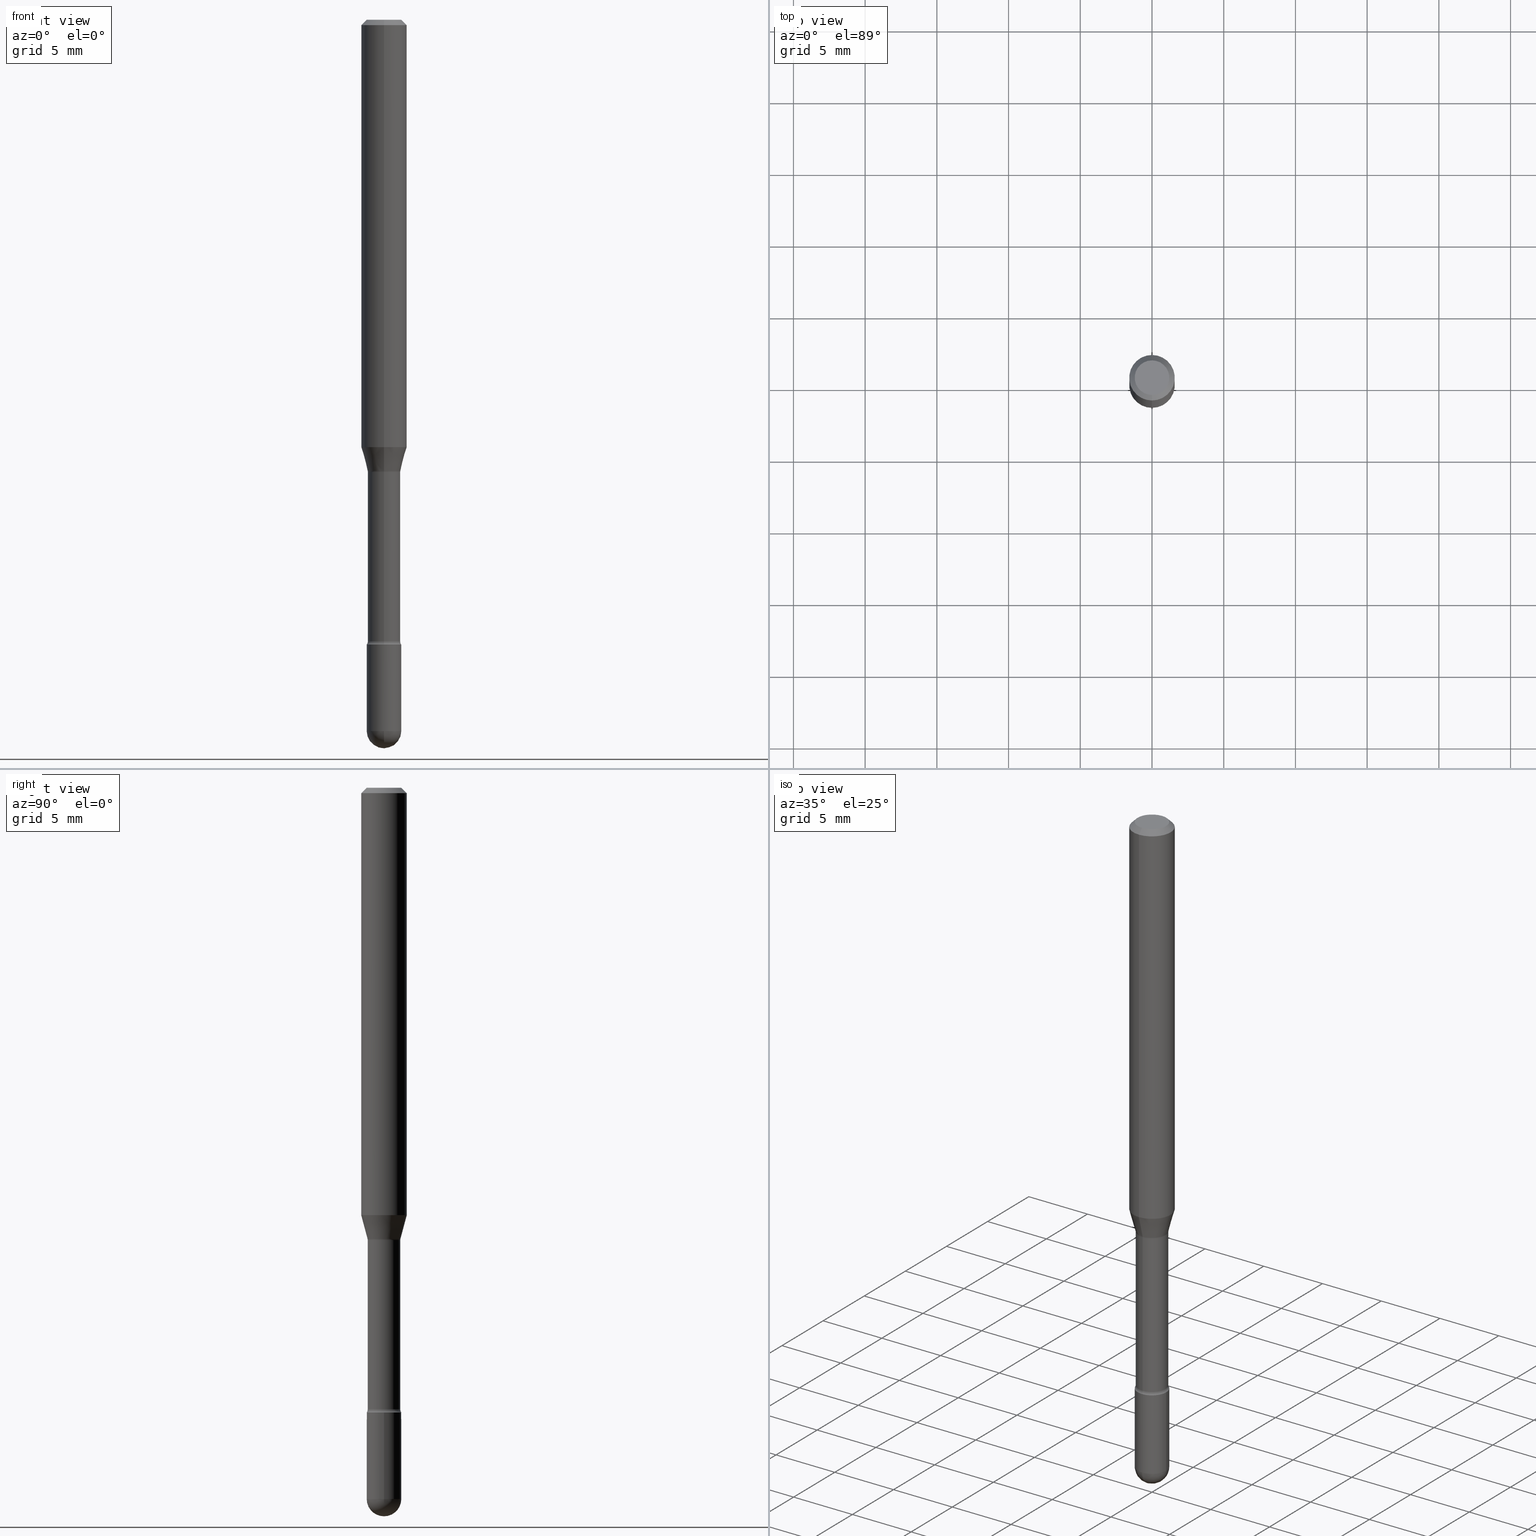
[diagram: canonical four-view strip — front | top / right | iso, engineering-drawing reading convention]
A machine part, canonical four-view strip (front | top / right | iso — engineering-drawing reading convention). The complete STEP part file that produces these views, byte-faithful:
ISO-10303-21;
HEADER;
FILE_DESCRIPTION (( 'STEP AP203' ),
    '1' );
FILE_NAME ('01605.STEP',
    '2024-04-09T20:08:48',
    ( '' ),
    ( '' ),
    'SwSTEP 2.0',
    'SolidWorks 2023',
    '' );
FILE_SCHEMA (( 'CONFIG_CONTROL_DESIGN' ));
ENDSEC;

DATA;
#1 = ADVANCED_FACE ( 'NONE', ( #424 ), #275, .T. ) ;
#2 = ORIENTED_EDGE ( 'NONE', *, *, #120, .F. ) ;
#3 = CARTESIAN_POINT ( 'NONE',  ( 4.172467563059193299E-29, -5.957177861563210606E-15, -1.706203551853162859 ) ) ;
#4 = AXIS2_PLACEMENT_3D ( 'NONE', #530, #142, #413 ) ;
#5 = CONICAL_SURFACE ( 'NONE', #564, 0.04516111260566398750, 0.2617993877991501850 ) ;
#6 = VERTEX_POINT ( 'NONE', #269 ) ;
#7 = FACE_OUTER_BOUND ( 'NONE', #467, .T. ) ;
#8 = DIRECTION ( 'NONE',  ( -6.982962677686266711E-15, -1.000000000000000000, 5.751258934030028949E-15 ) ) ;
#9 = CARTESIAN_POINT ( 'NONE',  ( 4.238387418809418286E-16, 0.05964999999999409663, -1.706203551853163081 ) ) ;
#10 = LENGTH_MEASURE_WITH_UNIT ( LENGTH_MEASURE( 0.02539999999999999897 ), #50 );
#11 = EDGE_CURVE ( 'NONE', #59, #175, #224, .T. ) ;
#12 = CARTESIAN_POINT ( 'NONE',  ( 3.172573315169266568E-16, 0.04464999999999567232, -1.241974787463811181 ) ) ;
#13 = AXIS2_PLACEMENT_3D ( 'NONE', #498, #62, #312 ) ;
#14 = ORIENTED_EDGE ( 'NONE', *, *, #401, .F. ) ;
#15 = CARTESIAN_POINT ( 'NONE',  ( 4.193963082302686338E-29, -5.987913294898629900E-15, -1.715000000000000080 ) ) ;
#16 = FACE_OUTER_BOUND ( 'NONE', #122, .T. ) ;
#17 = CARTESIAN_POINT ( 'NONE',  ( 2.023485354592907983E-45, -2.889149690141823315E-31, -8.274640061838199521E-17 ) ) ;
#18 = ORIENTED_EDGE ( 'NONE', *, *, #335, .T. ) ;
#19 = CARTESIAN_POINT ( 'NONE',  ( 4.774777844076478914E-29, -6.817117314091241226E-15, -1.952499999999999902 ) ) ;
#20 = CARTESIAN_POINT ( 'NONE',  ( 2.023485354592907983E-45, -2.889149690141823315E-31, -8.274640061838199521E-17 ) ) ;
#21 = ORIENTED_EDGE ( 'NONE', *, *, #231, .T. ) ;
#22 = CARTESIAN_POINT ( 'NONE',  ( -0.04750000000000000749, -6.064996105617570464E-15, -1.952499999999999902 ) ) ;
#23 = CARTESIAN_POINT ( 'NONE',  ( -1.169113584055446105E-44, 1.669184350826100908E-30, 4.780733988912460139E-16 ) ) ;
#24 = VERTEX_POINT ( 'NONE', #539 ) ;
#25 = DIRECTION ( 'NONE',  ( 0.000000000000000000, 0.000000000000000000, 1.000000000000000000 ) ) ;
#26 = TOROIDAL_SURFACE ( 'NONE', #205, 0.05965000000000000163, 0.01500000000000001853 ) ;
#27 = LOCAL_TIME ( 16, 8, 48.00000000000000000, #82 ) ;
#28 = CARTESIAN_POINT ( 'NONE',  ( 4.892968632307074311E-29, -6.980054141538316174E-15, -2.000000000000000000 ) ) ;
#29 = ORIENTED_EDGE ( 'NONE', *, *, #504, .T. ) ;
#30 = ORIENTED_EDGE ( 'NONE', *, *, #258, .F. ) ;
#31 = SHAPE_DEFINITION_REPRESENTATION ( #201, #141 ) ;
#32 = EDGE_CURVE ( 'NONE', #439, #59, #381, .T. ) ;
#33 = CC_DESIGN_PERSON_AND_ORGANIZATION_ASSIGNMENT ( #126, #425, ( #360 ) ) ;
#34 = EDGE_LOOP ( 'NONE', ( #276, #540 ) ) ;
#35 = UNCERTAINTY_MEASURE_WITH_UNIT (LENGTH_MEASURE( 1.000000000000000082E-05 ), #402, 'distance_accuracy_value', 'NONE');
#36 =( GEOMETRIC_REPRESENTATION_CONTEXT ( 3 ) GLOBAL_UNCERTAINTY_ASSIGNED_CONTEXT ( ( #35 ) ) GLOBAL_UNIT_ASSIGNED_CONTEXT ( ( #402, #270, #537 ) ) REPRESENTATION_CONTEXT ( 'NONE', 'WORKASPACE' ) );
#37 = PERSON_AND_ORGANIZATION ( #216, #253 ) ;
#38 = CARTESIAN_POINT ( 'NONE',  ( 3.668189284812864689E-31, -5.237241948890958867E-17, -0.01500000000000008271 ) ) ;
#39 = COORDINATED_UNIVERSAL_TIME_OFFSET ( 5, 0, .BEHIND. ) ;
#40 = CC_DESIGN_PERSON_AND_ORGANIZATION_ASSIGNMENT ( #255, #207, ( #155 ) ) ;
#41 = DIRECTION ( 'NONE',  ( -6.982962677686265922E-15, -1.000000000000000000, 6.118360568117042054E-15 ) ) ;
#42 = CARTESIAN_POINT ( 'NONE',  ( -1.169113584055446105E-44, 1.669184350826100908E-30, 4.780733988912460139E-16 ) ) ;
#43 = CONICAL_SURFACE ( 'NONE', #419, 0.06250000000000000000, 0.7853981633974483900 ) ;
#44 = FACE_OUTER_BOUND ( 'NONE', #406, .T. ) ;
#45 = LINE ( 'NONE', #129, #358 ) ;
#46 = EDGE_CURVE ( 'NONE', #477, #334, #392, .T. ) ;
#47 = CARTESIAN_POINT ( 'NONE',  ( 4.440892098500625669E-16, 0.06250000000000000000, 2.598549843541239912E-16 ) ) ;
#48 = AXIS2_PLACEMENT_3D ( 'NONE', #17, #487, #98 ) ;
#49 = AXIS2_PLACEMENT_3D ( 'NONE', #314, #179, #355 ) ;
#50 =( LENGTH_UNIT ( ) NAMED_UNIT ( * ) SI_UNIT ( $, .METRE. ) );
#51 = CARTESIAN_POINT ( 'NONE',  ( 4.193979002607509757E-29, -5.987890496115994688E-15, -1.715000000000000080 ) ) ;
#52 = EDGE_CURVE ( 'NONE', #337, #477, #469, .T. ) ;
#53 = CYLINDRICAL_SURFACE ( 'NONE', #169, 0.04465000000000003688 ) ;
#54 = ORIENTED_EDGE ( 'NONE', *, *, #11, .F. ) ;
#55 = FACE_OUTER_BOUND ( 'NONE', #146, .T. ) ;
#56 = CARTESIAN_POINT ( 'NONE',  ( 3.037199071588307396E-29, -4.336348304246911430E-15, -1.241974787463810959 ) ) ;
#57 = AXIS2_PLACEMENT_3D ( 'NONE', #3, #521, #486 ) ;
#58 = VECTOR ( 'NONE', #307, 39.37007874015748143 ) ;
#59 = VERTEX_POINT ( 'NONE', #184 ) ;
#60 = EDGE_CURVE ( 'NONE', #439, #236, #378, .T. ) ;
#61 = DIRECTION ( 'NONE',  ( -2.445459523208563077E-29, 3.491494632593953152E-15, 1.000000000000000000 ) ) ;
#62 = DIRECTION ( 'NONE',  ( -2.445459523208563077E-29, 3.491494632593953152E-15, 1.000000000000000000 ) ) ;
#63 = EDGE_LOOP ( 'NONE', ( #206, #134, #471, #18, #549 ) ) ;
#64 = CARTESIAN_POINT ( 'NONE',  ( 0.04750000000000000749, -3.316907271900977082E-16, 2.316183968503069432E-30 ) ) ;
#65 = CARTESIAN_POINT ( 'NONE',  ( -3.316907271900557507E-16, -0.04750000000000598882, -1.714999999999999858 ) ) ;
#66 = ORIENTED_EDGE ( 'NONE', *, *, #263, .F. ) ;
#67 = DIRECTION ( 'NONE',  ( 1.000000000000000000, -6.982962677686266711E-15, 4.876176775795934672E-29 ) ) ;
#68 = CIRCLE ( 'NONE', #4, 0.01500000000000001853 ) ;
#69 = ORIENTED_EDGE ( 'NONE', *, *, #46, .F. ) ;
#70 = APPROVAL_ROLE ( '' ) ;
#71 = VERTEX_POINT ( 'NONE', #145 ) ;
#72 = APPROVAL_DATE_TIME ( #507, #396 ) ;
#73 = EDGE_CURVE ( 'NONE', #236, #175, #68, .T. ) ;
#74 = ORIENTED_EDGE ( 'NONE', *, *, #485, .T. ) ;
#75 = APPROVAL_DATE_TIME ( #294, #220 ) ;
#76 = EDGE_LOOP ( 'NONE', ( #2, #66, #74, #156 ) ) ;
#77 = COORDINATED_UNIVERSAL_TIME_OFFSET ( 5, 0, .BEHIND. ) ;
#78 = AXIS2_PLACEMENT_3D ( 'NONE', #118, #168, #491 ) ;
#79 = DIRECTION ( 'NONE',  ( -2.445468806185136597E-29, 3.491481338843145583E-15, 1.000000000000000000 ) ) ;
#80 = LOCAL_TIME ( 16, 8, 48.00000000000000000, #77 ) ;
#81 = APPROVAL ( #388, 'UNSPECIFIED' ) ;
#82 = COORDINATED_UNIVERSAL_TIME_OFFSET ( 5, 0, .BEHIND. ) ;
#83 = DIRECTION ( 'NONE',  ( -6.982962677686265922E-15, -1.000000000000000000, 3.491494632593953152E-15 ) ) ;
#84 = ORIENTED_EDGE ( 'NONE', *, *, #520, .F. ) ;
#85 = DIRECTION ( 'NONE',  ( -2.445459523208563077E-29, 3.491494632593953152E-15, 1.000000000000000000 ) ) ;
#86 = DIRECTION ( 'NONE',  ( -6.982962677686266711E-15, -1.000000000000000000, 6.049115790211160649E-15 ) ) ;
#87 = VECTOR ( 'NONE', #85, 39.37007874015748143 ) ;
#88 = AXIS2_PLACEMENT_3D ( 'NONE', #418, #25, #376 ) ;
#89 = DIRECTION ( 'NONE',  ( -2.445459523208563077E-29, 3.491494632593953152E-15, 1.000000000000000000 ) ) ;
#90 = EDGE_CURVE ( 'NONE', #327, #113, #267, .T. ) ;
#91 = VERTEX_POINT ( 'NONE', #65 ) ;
#92 = CARTESIAN_POINT ( 'NONE',  ( 3.027705099108801409E-29, -4.322793324645083169E-15, -1.238092501787273036 ) ) ;
#93 = ORIENTED_EDGE ( 'NONE', *, *, #104, .F. ) ;
#94 = DIRECTION ( 'NONE',  ( 2.445459523208563077E-29, -3.491494632593953152E-15, -1.000000000000000000 ) ) ;
#95 = AXIS2_PLACEMENT_3D ( 'NONE', #324, #548, #192 ) ;
#96 = DIRECTION ( 'NONE',  ( 1.000000000000000000, -7.105427357601001070E-15, 4.926315671343576413E-29 ) ) ;
#97 = DIRECTION ( 'NONE',  ( -2.445459523208563077E-29, 3.491494632593953152E-15, 1.000000000000000000 ) ) ;
#98 = DIRECTION ( 'NONE',  ( -6.982962677686266711E-15, -1.000000000000000000, 3.491494632593952758E-15 ) ) ;
#99 = ORIENTED_EDGE ( 'NONE', *, *, #429, .T. ) ;
#100 = CARTESIAN_POINT ( 'NONE',  ( -1.169113584055446105E-44, 1.669184350826100908E-30, 4.780733988912460139E-16 ) ) ;
#101 = LINE ( 'NONE', #391, #213 ) ;
#102 = CARTESIAN_POINT ( 'NONE',  ( -3.773273898774340269E-16, -0.04749999999999999362, 8.309959442983075930E-17 ) ) ;
#103 = ORIENTED_EDGE ( 'NONE', *, *, #60, .F. ) ;
#104 = EDGE_CURVE ( 'NONE', #175, #59, #544, .T. ) ;
#105 = CARTESIAN_POINT ( 'NONE',  ( 3.668189284812864689E-31, -5.237241948890958867E-17, -0.01500000000000008271 ) ) ;
#106 = CYLINDRICAL_SURFACE ( 'NONE', #398, 0.04750000000000000749 ) ;
#107 = CONICAL_SURFACE ( 'NONE', #428, 0.04516111260566398750, 0.2617993877991501850 ) ;
#108 = CC_DESIGN_APPROVAL ( #396, ( #360 ) ) ;
#109 = ORIENTED_EDGE ( 'NONE', *, *, #546, .T. ) ;
#110 = FACE_OUTER_BOUND ( 'NONE', #506, .T. ) ;
#111 = DIRECTION ( 'NONE',  ( -6.982962677686265922E-15, -1.000000000000000000, 6.118360568117049942E-15 ) ) ;
#112 = CLOSED_SHELL ( 'NONE', ( #215, #165, #382, #320, #556, #423, #453, #470, #356, #496, #535, #437, #442, #313 ) ) ;
#113 = VERTEX_POINT ( 'NONE', #102 ) ;
#114 = DIRECTION ( 'NONE',  ( -2.445459523208563077E-29, 3.491494632593953152E-15, 1.000000000000000000 ) ) ;
#115 = EDGE_LOOP ( 'NONE', ( #193, #414, #264, #257 ) ) ;
#116 = PERSON_AND_ORGANIZATION_ROLE ( 'creator' ) ;
#117 = DIRECTION ( 'NONE',  ( -2.445459523208563077E-29, 3.491494632593953152E-15, 1.000000000000000000 ) ) ;
#118 = CARTESIAN_POINT ( 'NONE',  ( 4.774777844076478914E-29, -6.817117314091241226E-15, -1.952499999999999902 ) ) ;
#119 = ORIENTED_EDGE ( 'NONE', *, *, #120, .T. ) ;
#120 = EDGE_CURVE ( 'NONE', #293, #330, #371, .T. ) ;
#121 = SECURITY_CLASSIFICATION_LEVEL ( 'unclassified' ) ;
#122 = EDGE_LOOP ( 'NONE', ( #30, #285, #306, #455 ) ) ;
#123 = VERTEX_POINT ( 'NONE', #361 ) ;
#124 = DATE_TIME_ROLE ( 'classification_date' ) ;
#125 = CC_DESIGN_PERSON_AND_ORGANIZATION_ASSIGNMENT ( #468, #513, ( #526 ) ) ;
#126 = PERSON_AND_ORGANIZATION ( #216, #253 ) ;
#127 = AXIS2_PLACEMENT_3D ( 'NONE', #9, #96, #238 ) ;
#128 = DIRECTION ( 'NONE',  ( -6.982962677686265922E-15, -1.000000000000000000, 3.483106191921935554E-15 ) ) ;
#129 = CARTESIAN_POINT ( 'NONE',  ( -4.287811248607203282E-16, -0.06250000000000005551, -0.01499999999999986587 ) ) ;
#130 = DIRECTION ( 'NONE',  ( -6.982962677686265922E-15, -1.000000000000000000, 3.491494632593953152E-15 ) ) ;
#131 = ADVANCED_FACE ( 'NONE', ( #225 ), #357, .T. ) ;
#132 = PLANE ( 'NONE',  #49 ) ;
#133 = VECTOR ( 'NONE', #61, 39.37007874015748143 ) ;
#134 = ORIENTED_EDGE ( 'NONE', *, *, #52, .T. ) ;
#135 = DIRECTION ( 'NONE',  ( -6.982962677686265922E-15, -1.000000000000000000, 3.491494632593953547E-15 ) ) ;
#136 = CARTESIAN_POINT ( 'NONE',  ( 3.208890050080145858E-16, 0.04516111260565967150, -1.238092501787273259 ) ) ;
#137 = EDGE_CURVE ( 'NONE', #439, #239, #318, .T. ) ;
#138 = DIRECTION ( 'NONE',  ( -2.445468806185136597E-29, 3.491481338843145583E-15, 1.000000000000000000 ) ) ;
#139 = AXIS2_PLACEMENT_3D ( 'NONE', #221, #522, #212 ) ;
#140 = CARTESIAN_POINT ( 'NONE',  ( -3.153583638081081446E-16, -0.04516111260566831043, -1.238092501787272814 ) ) ;
#141 = ADVANCED_BREP_SHAPE_REPRESENTATION ( '01605', ( #342, #525, #88 ), #36 ) ;
#142 = DIRECTION ( 'NONE',  ( 1.000000000000000000, -7.105427357601001070E-15, 4.926315671343576413E-29 ) ) ;
#143 = ORIENTED_EDGE ( 'NONE', *, *, #90, .T. ) ;
#144 = DIRECTION ( 'NONE',  ( -6.982962677686266711E-15, -1.000000000000000000, 6.049115790211160649E-15 ) ) ;
#145 = CARTESIAN_POINT ( 'NONE',  ( 4.440892098500914096E-16, 0.06249999999999995143, -0.01500000000000030129 ) ) ;
#146 = EDGE_LOOP ( 'NONE', ( #551, #84 ) ) ;
#147 = EDGE_CURVE ( 'NONE', #91, #330, #481, .T. ) ;
#148 = CARTESIAN_POINT ( 'NONE',  ( 3.840629472727447874E-16, 0.04749999999999999362, -2.485923956665947374E-16 ) ) ;
#149 = DIRECTION ( 'NONE',  ( -2.445459523208563077E-29, 3.491494632593953152E-15, 1.000000000000000000 ) ) ;
#150 = AXIS2_PLACEMENT_3D ( 'NONE', #412, #463, #83 ) ;
#151 = CIRCLE ( 'NONE', #304, 0.04750000000000000749 ) ;
#152 = EDGE_LOOP ( 'NONE', ( #247, #499, #495, #552 ) ) ;
#153 = DIRECTION ( 'NONE',  ( -1.000000000000000000, 6.982962677686265922E-15, -4.883557194083112340E-29 ) ) ;
#154 = DIRECTION ( 'NONE',  ( -1.000000000000000000, 6.982962677686265922E-15, -4.883557194083112340E-29 ) ) ;
#155 = PRODUCT ( '01605', '01605', '', ( #427 ) ) ;
#156 = ORIENTED_EDGE ( 'NONE', *, *, #147, .T. ) ;
#157 = PERSON_AND_ORGANIZATION ( #216, #253 ) ;
#158 = ADVANCED_FACE ( 'NONE', ( #272 ), #106, .T. ) ;
#159 = DIRECTION ( 'NONE',  ( -6.982962677686265922E-15, -1.000000000000000000, 3.483106191921935554E-15 ) ) ;
#160 = EDGE_LOOP ( 'NONE', ( #162, #512, #451, #290 ) ) ;
#161 = AXIS2_PLACEMENT_3D ( 'NONE', #480, #265, #484 ) ;
#162 = ORIENTED_EDGE ( 'NONE', *, *, #350, .F. ) ;
#163 = APPROVAL_STATUS ( 'not_yet_approved' ) ;
#164 = ORIENTED_EDGE ( 'NONE', *, *, #199, .F. ) ;
#165 = ADVANCED_FACE ( 'NONE', ( #534 ), #53, .T. ) ;
#166 = DESIGN_CONTEXT ( 'detailed design', #441, 'design' ) ;
#167 = APPROVAL_DATE_TIME ( #252, #81 ) ;
#168 = DIRECTION ( 'NONE',  ( -1.000000000000000000, 7.105427357601001070E-15, -4.926315508542082329E-29 ) ) ;
#169 = AXIS2_PLACEMENT_3D ( 'NONE', #23, #235, #227 ) ;
#170 = CONICAL_SURFACE ( 'NONE', #489, 0.06250000000000000000, 0.7853981633974483900 ) ;
#171 = FACE_OUTER_BOUND ( 'NONE', #160, .T. ) ;
#172 = CARTESIAN_POINT ( 'NONE',  ( -3.153583638081081446E-16, -0.04516111260566831043, -1.238092501787272814 ) ) ;
#173 = EDGE_CURVE ( 'NONE', #113, #327, #230, .T. ) ;
#174 = CARTESIAN_POINT ( 'NONE',  ( 3.172573315168849457E-16, 0.04465000000000003688, 3.221781635459259007E-16 ) ) ;
#175 = VERTEX_POINT ( 'NONE', #12 ) ;
#176 = CARTESIAN_POINT ( 'NONE',  ( -3.117892835586504621E-16, -0.04465000000000601821, -1.706203551853162415 ) ) ;
#177 = EDGE_CURVE ( 'NONE', #203, #477, #288, .T. ) ;
#178 = FACE_OUTER_BOUND ( 'NONE', #287, .T. ) ;
#179 = DIRECTION ( 'NONE',  ( 2.445459523208562796E-29, -3.491494632593953152E-15, -1.000000000000000000 ) ) ;
#180 = DIRECTION ( 'NONE',  ( 1.000000000000000000, -6.982962677686265922E-15, 4.876176775795935793E-29 ) ) ;
#181 = APPLICATION_PROTOCOL_DEFINITION ( 'international standard', 'config_control_design', 1994, #208 ) ;
#182 = CARTESIAN_POINT ( 'NONE',  ( 3.316907271901395178E-16, 0.04749999999999401229, -1.715000000000000524 ) ) ;
#183 = CIRCLE ( 'NONE', #139, 0.04749999999999999362 ) ;
#184 = CARTESIAN_POINT ( 'NONE',  ( -3.117892835586614568E-16, -0.04465000000000434593, -1.241974787463810737 ) ) ;
#185 = ORIENTED_EDGE ( 'NONE', *, *, #292, .F. ) ;
#186 = FACE_OUTER_BOUND ( 'NONE', #464, .T. ) ;
#187 = SPHERICAL_SURFACE ( 'NONE', #473, 0.04749999999999998668 ) ;
#188 = CARTESIAN_POINT ( 'NONE',  ( 3.037199071588307396E-29, -4.336348304246911430E-15, -1.241974787463810959 ) ) ;
#189 = EDGE_CURVE ( 'NONE', #411, #59, #101, .T. ) ;
#190 = ORIENTED_EDGE ( 'NONE', *, *, #350, .T. ) ;
#191 = CARTESIAN_POINT ( 'NONE',  ( 3.037210600811164574E-29, -4.336331793743577757E-15, -1.241974787463810959 ) ) ;
#192 = DIRECTION ( 'NONE',  ( -6.982962677686266711E-15, -1.000000000000000000, 6.049115790211160649E-15 ) ) ;
#193 = ORIENTED_EDGE ( 'NONE', *, *, #60, .T. ) ;
#194 = CARTESIAN_POINT ( 'NONE',  ( 0.000000000000000000, 0.000000000000000000, 0.000000000000000000 ) ) ;
#195 = CARTESIAN_POINT ( 'NONE',  ( 4.774777844076478914E-29, -6.817117314091241226E-15, -1.952499999999999902 ) ) ;
#196 = AXIS2_PLACEMENT_3D ( 'NONE', #19, #254, #256 ) ;
#197 = APPROVAL_PERSON_ORGANIZATION ( #331, #220, #384 ) ;
#198 = VERTEX_POINT ( 'NONE', #368 ) ;
#199 = EDGE_CURVE ( 'NONE', #198, #337, #332, .T. ) ;
#200 = DIRECTION ( 'NONE',  ( -2.445459523208563077E-29, 3.491494632593953152E-15, 1.000000000000000000 ) ) ;
#201 = PRODUCT_DEFINITION_SHAPE ( 'NONE', 'NONE',  #526 ) ;
#202 = ORIENTED_EDGE ( 'NONE', *, *, #563, .T. ) ;
#203 = VERTEX_POINT ( 'NONE', #28 ) ;
#204 = EDGE_CURVE ( 'NONE', #24, #239, #435, .T. ) ;
#205 = AXIS2_PLACEMENT_3D ( 'NONE', #191, #117, #476 ) ;
#206 = ORIENTED_EDGE ( 'NONE', *, *, #563, .F. ) ;
#207 = PERSON_AND_ORGANIZATION_ROLE ( 'design_owner' ) ;
#208 = APPLICATION_CONTEXT ( 'configuration controlled 3d designs of mechanical parts and assemblies' ) ;
#209 = CC_DESIGN_PERSON_AND_ORGANIZATION_ASSIGNMENT ( #157, #514, ( #518 ) ) ;
#210 = CALENDAR_DATE ( 2024, 9, 4 ) ;
#211 = DIRECTION ( 'NONE',  ( 6.982962677686265922E-15, 1.000000000000000000, -3.483106191921935554E-15 ) ) ;
#212 = DIRECTION ( 'NONE',  ( 1.000000000000000000, -6.982962677686261977E-15, 0.000000000000000000 ) ) ;
#213 = VECTOR ( 'NONE', #298, 39.37007874015748143 ) ;
#214 = CARTESIAN_POINT ( 'NONE',  ( -3.375077994859997675E-16, -0.04750000000000682149, -1.952499999999999680 ) ) ;
#215 = ADVANCED_FACE ( 'NONE', ( #16 ), #462, .F. ) ;
#216 = PERSON ( 'UNSPECIFIED', 'UNSPECIFIED', 'UNSPECIFIED', ('UNSPECIFIED'), ('UNSPECIFIED'), ('UNSPECIFIED') ) ;
#217 = CARTESIAN_POINT ( 'NONE',  ( 3.668189284812864689E-31, -5.237241948890958867E-17, -0.01500000000000008271 ) ) ;
#218 = ORIENTED_EDGE ( 'NONE', *, *, #367, .T. ) ;
#219 = CYLINDRICAL_SURFACE ( 'NONE', #444, 0.04465000000000003688 ) ;
#220 = APPROVAL ( #163, 'UNSPECIFIED' ) ;
#221 = CARTESIAN_POINT ( 'NONE',  ( 4.193979002607509757E-29, -5.987890496115994688E-15, -1.715000000000000080 ) ) ;
#222 = CIRCLE ( 'NONE', #278, 0.04749999999999999362 ) ;
#223 = CC_DESIGN_DATE_AND_TIME_ASSIGNMENT ( #246, #124, ( #360 ) ) ;
#224 = CIRCLE ( 'NONE', #377, 0.04465000000000000913 ) ;
#225 = FACE_OUTER_BOUND ( 'NONE', #34, .T. ) ;
#226 = DIRECTION ( 'NONE',  ( -6.982962677686265922E-15, -1.000000000000000000, 3.491494632593953152E-15 ) ) ;
#227 = DIRECTION ( 'NONE',  ( -6.982962677686265922E-15, -1.000000000000000000, 3.491494632593953547E-15 ) ) ;
#228 = VERTEX_POINT ( 'NONE', #538 ) ;
#229 = CARTESIAN_POINT ( 'NONE',  ( 2.869460370264472986E-29, -4.096860073183477433E-15, -1.173382893084895739 ) ) ;
#230 = CIRCLE ( 'NONE', #250, 0.04749999999999999362 ) ;
#231 = EDGE_CURVE ( 'NONE', #6, #71, #562, .T. ) ;
#232 = CARTESIAN_POINT ( 'NONE',  ( -4.165337237239554180E-16, -0.05965000000000433844, -1.241974787463810737 ) ) ;
#233 = ORIENTED_EDGE ( 'NONE', *, *, #429, .F. ) ;
#234 = DIRECTION ( 'NONE',  ( 2.445459523208563077E-29, -3.491494632593953152E-15, -1.000000000000000000 ) ) ;
#235 = DIRECTION ( 'NONE',  ( -2.445459523208563077E-29, 3.491494632593953152E-15, 1.000000000000000000 ) ) ;
#236 = VERTEX_POINT ( 'NONE', #286 ) ;
#237 = CYLINDRICAL_SURFACE ( 'NONE', #517, 0.04750000000000000749 ) ;
#238 = DIRECTION ( 'NONE',  ( 7.105427357601001859E-15, 1.000000000000000000, 0.000000000000000000 ) ) ;
#239 = VERTEX_POINT ( 'NONE', #326 ) ;
#240 = CIRCLE ( 'NONE', #510, 0.06250000000000000000 ) ;
#241 = FACE_OUTER_BOUND ( 'NONE', #273, .T. ) ;
#242 = VECTOR ( 'NONE', #266, 39.37007874015748143 ) ;
#243 = AXIS2_PLACEMENT_3D ( 'NONE', #182, #493, #226 ) ;
#244 = ORIENTED_EDGE ( 'NONE', *, *, #504, .F. ) ;
#245 = ORIENTED_EDGE ( 'NONE', *, *, #189, .T. ) ;
#246 = DATE_AND_TIME ( #422, #80 ) ;
#247 = ORIENTED_EDGE ( 'NONE', *, *, #479, .F. ) ;
#248 = DATE_TIME_ROLE ( 'creation_date' ) ;
#249 = ADVANCED_FACE ( 'NONE', ( #505 ), #187, .T. ) ;
#250 = AXIS2_PLACEMENT_3D ( 'NONE', #20, #149, #405 ) ;
#251 = ORIENTED_EDGE ( 'NONE', *, *, #199, .T. ) ;
#252 = DATE_AND_TIME ( #557, #268 ) ;
#253 = ORGANIZATION ( 'UNSPECIFIED', 'UNSPECIFIED', '' ) ;
#254 = DIRECTION ( 'NONE',  ( 1.000000000000000000, -6.982962677686265922E-15, 4.883557194083112340E-29 ) ) ;
#255 = PERSON_AND_ORGANIZATION ( #216, #253 ) ;
#256 = DIRECTION ( 'NONE',  ( 6.982962677686265133E-15, 1.000000000000000000, 0.000000000000000000 ) ) ;
#257 = ORIENTED_EDGE ( 'NONE', *, *, #137, .F. ) ;
#258 = EDGE_CURVE ( 'NONE', #236, #439, #553, .T. ) ;
#259 = DIRECTION ( 'NONE',  ( -2.445459523208563077E-29, 3.491494632593953152E-15, 1.000000000000000000 ) ) ;
#260 = VECTOR ( 'NONE', #416, 39.37007874015749564 ) ;
#261 = LINE ( 'NONE', #262, #58 ) ;
#262 = CARTESIAN_POINT ( 'NONE',  ( 4.364351673553919652E-16, 0.06249999999999995143, -0.01500000000000030129 ) ) ;
#263 = EDGE_CURVE ( 'NONE', #411, #293, #303, .T. ) ;
#264 = ORIENTED_EDGE ( 'NONE', *, *, #546, .F. ) ;
#265 = DIRECTION ( 'NONE',  ( -2.445468806185136597E-29, 3.491481338843145583E-15, 1.000000000000000000 ) ) ;
#266 = DIRECTION ( 'NONE',  ( -2.445468806185136877E-29, 3.491481338843145188E-15, 1.000000000000000000 ) ) ;
#267 = CIRCLE ( 'NONE', #48, 0.04749999999999999362 ) ;
#268 = LOCAL_TIME ( 16, 8, 48.00000000000000000, #558 ) ;
#269 = CARTESIAN_POINT ( 'NONE',  ( -4.364351673553912750E-16, -0.06250000000000005551, -0.01499999999999986587 ) ) ;
#270 =( NAMED_UNIT ( * ) PLANE_ANGLE_UNIT ( ) SI_UNIT ( $, .RADIAN. ) );
#271 = DIRECTION ( 'NONE',  ( -6.982962677686265922E-15, -1.000000000000000000, 3.491494632593953152E-15 ) ) ;
#272 = FACE_OUTER_BOUND ( 'NONE', #63, .T. ) ;
#273 = EDGE_LOOP ( 'NONE', ( #251, #202, #483, #511, #29 ) ) ;
#274 = EDGE_CURVE ( 'NONE', #239, #6, #550, .T. ) ;
#275 = SPHERICAL_SURFACE ( 'NONE', #478, 0.04749999999999998668 ) ;
#276 = ORIENTED_EDGE ( 'NONE', *, *, #395, .T. ) ;
#277 = AXIS2_PLACEMENT_3D ( 'NONE', #105, #541, #159 ) ;
#278 = AXIS2_PLACEMENT_3D ( 'NONE', #15, #533, #8 ) ;
#279 = CARTESIAN_POINT ( 'NONE',  ( -4.364351673553916201E-16, -0.06250000000000000000, 6.962918134283680859E-16 ) ) ;
#280 = DIRECTION ( 'NONE',  ( -2.445468806185136597E-29, 3.491481338843145583E-15, 1.000000000000000000 ) ) ;
#281 = ORIENTED_EDGE ( 'NONE', *, *, #367, .F. ) ;
#282 = ADVANCED_FACE ( 'NONE', ( #241 ), #237, .T. ) ;
#283 = CARTESIAN_POINT ( 'NONE',  ( 0.04750000000000000749, -6.734194632293715468E-15, -1.952499999999999902 ) ) ;
#284 = DIRECTION ( 'NONE',  ( -2.438088387897960049E-29, 3.491481338843145188E-15, 1.000000000000000000 ) ) ;
#285 = ORIENTED_EDGE ( 'NONE', *, *, #73, .T. ) ;
#286 = CARTESIAN_POINT ( 'NONE',  ( 3.824891074290529484E-16, 0.04516111260565967150, -1.238092501787273259 ) ) ;
#287 = EDGE_LOOP ( 'NONE', ( #281, #458, #426, #185 ) ) ;
#288 = CIRCLE ( 'NONE', #78, 0.04749999999999998668 ) ;
#289 = VECTOR ( 'NONE', #393, 39.37007874015748143 ) ;
#290 = ORIENTED_EDGE ( 'NONE', *, *, #292, .T. ) ;
#291 = ORIENTED_EDGE ( 'NONE', *, *, #173, .T. ) ;
#292 = EDGE_CURVE ( 'NONE', #71, #6, #240, .T. ) ;
#293 = VERTEX_POINT ( 'NONE', #379 ) ;
#294 = DATE_AND_TIME ( #210, #351 ) ;
#295 = AXIS2_PLACEMENT_3D ( 'NONE', #508, #317, #144 ) ;
#296 = APPROVAL_STATUS ( 'not_yet_approved' ) ;
#297 = AXIS2_PLACEMENT_3D ( 'NONE', #42, #432, #130 ) ;
#298 = DIRECTION ( 'NONE',  ( -2.445459523208563077E-29, 3.491494632593953152E-15, 1.000000000000000000 ) ) ;
#299 = ORIENTED_EDGE ( 'NONE', *, *, #401, .T. ) ;
#300 = EDGE_CURVE ( 'NONE', #203, #198, #531, .T. ) ;
#301 = CARTESIAN_POINT ( 'NONE',  ( 4.172451724411591816E-29, -5.957200543408056357E-15, -1.706203551853162859 ) ) ;
#302 = LINE ( 'NONE', #136, #289 ) ;
#303 = CIRCLE ( 'NONE', #452, 0.04465000000000006464 ) ;
#304 = AXIS2_PLACEMENT_3D ( 'NONE', #529, #138, #449 ) ;
#305 = DIRECTION ( 'NONE',  ( -2.445459523208563077E-29, 3.491494632593953152E-15, 1.000000000000000000 ) ) ;
#306 = ORIENTED_EDGE ( 'NONE', *, *, #104, .T. ) ;
#307 = DIRECTION ( 'NONE',  ( 4.937700262164548042E-15, 0.7071067811865451302, -0.7071067811865499042 ) ) ;
#308 = CC_DESIGN_PERSON_AND_ORGANIZATION_ASSIGNMENT ( #338, #116, ( #518 ) ) ;
#309 = CARTESIAN_POINT ( 'NONE',  ( -4.165337237239444233E-16, -0.05965000000000601765, -1.706203551853162415 ) ) ;
#310 = PLANE ( 'NONE',  #243 ) ;
#311 = LOCAL_TIME ( 16, 8, 48.00000000000000000, #39 ) ;
#312 = DIRECTION ( 'NONE',  ( -6.982962677686266711E-15, -1.000000000000000000, 5.751258934030028949E-15 ) ) ;
#313 = ADVANCED_FACE ( 'NONE', ( #110 ), #26, .F. ) ;
#314 = CARTESIAN_POINT ( 'NONE',  ( 3.316907271900976096E-16, 0.04749999999999999362, 3.181750408821924868E-17 ) ) ;
#315 = DIRECTION ( 'NONE',  ( -1.000000000000000000, 6.982962677686265922E-15, -4.883557194083112340E-29 ) ) ;
#316 = ORIENTED_EDGE ( 'NONE', *, *, #173, .F. ) ;
#317 = DIRECTION ( 'NONE',  ( -2.445459523208563077E-29, 3.491494632593953152E-15, 1.000000000000000000 ) ) ;
#318 = LINE ( 'NONE', #140, #260 ) ;
#319 = ORIENTED_EDGE ( 'NONE', *, *, #520, .T. ) ;
#320 = ADVANCED_FACE ( 'NONE', ( #430 ), #43, .T. ) ;
#321 = AXIS2_PLACEMENT_3D ( 'NONE', #188, #365, #111 ) ;
#322 = CIRCLE ( 'NONE', #333, 0.06250000000000000000 ) ;
#323 = DIRECTION ( 'NONE',  ( -2.445468806185136597E-29, 3.491481338843145583E-15, 1.000000000000000000 ) ) ;
#324 = CARTESIAN_POINT ( 'NONE',  ( 3.027705099108801409E-29, -4.322793324645083169E-15, -1.238092501787273036 ) ) ;
#325 = ORIENTED_EDGE ( 'NONE', *, *, #73, .F. ) ;
#326 = CARTESIAN_POINT ( 'NONE',  ( -4.364351673553627281E-16, -0.06250000000000405231, -1.173382893084895295 ) ) ;
#327 = VERTEX_POINT ( 'NONE', #148 ) ;
#328 = CALENDAR_DATE ( 2024, 9, 4 ) ;
#329 = DIRECTION ( 'NONE',  ( 1.000000000000000000, -6.982962677686260400E-15, 0.000000000000000000 ) ) ;
#330 = VERTEX_POINT ( 'NONE', #502 ) ;
#331 = PERSON_AND_ORGANIZATION ( #216, #253 ) ;
#332 = CIRCLE ( 'NONE', #443, 0.04750000000000000749 ) ;
#333 = AXIS2_PLACEMENT_3D ( 'NONE', #229, #490, #408 ) ;
#334 = VERTEX_POINT ( 'NONE', #283 ) ;
#335 = EDGE_CURVE ( 'NONE', #334, #228, #456, .T. ) ;
#336 = COORDINATED_UNIVERSAL_TIME_OFFSET ( 5, 0, .BEHIND. ) ;
#337 = VERTEX_POINT ( 'NONE', #22 ) ;
#338 = PERSON_AND_ORGANIZATION ( #216, #253 ) ;
#339 = AXIS2_PLACEMENT_3D ( 'NONE', #195, #542, #494 ) ;
#340 = APPLICATION_PROTOCOL_DEFINITION ( 'international standard', 'config_control_design', 1994, #441 ) ;
#341 = CARTESIAN_POINT ( 'NONE',  ( 4.172451724411591816E-29, -5.957200543408056357E-15, -1.706203551853162859 ) ) ;
#342 = MANIFOLD_SOLID_BREP ( 'Body-Move/Copy2[1]', #431 ) ;
#343 = EDGE_CURVE ( 'NONE', #123, #228, #183, .T. ) ;
#344 = VECTOR ( 'NONE', #415, 39.37007874015748143 ) ;
#345 = CC_DESIGN_SECURITY_CLASSIFICATION ( #360, ( #518 ) ) ;
#346 = DIRECTION ( 'NONE',  ( -6.982962677686265922E-15, -1.000000000000000000, 3.491494632593953152E-15 ) ) ;
#347 = DIRECTION ( 'NONE',  ( -1.000000000000000000, 6.982962677686265922E-15, -4.883557194083112340E-29 ) ) ;
#348 = DIRECTION ( 'NONE',  ( -6.982962677686266711E-15, -1.000000000000000000, 0.000000000000000000 ) ) ;
#349 = CIRCLE ( 'NONE', #399, 0.04465000000000006464 ) ;
#350 = EDGE_CURVE ( 'NONE', #113, #6, #45, .T. ) ;
#351 = LOCAL_TIME ( 16, 8, 48.00000000000000000, #336 ) ;
#352 = FACE_OUTER_BOUND ( 'NONE', #115, .T. ) ;
#353 = DIMENSIONAL_EXPONENTS ( 1.000000000000000000, 0.000000000000000000, 0.000000000000000000, 0.000000000000000000, 0.000000000000000000, 0.000000000000000000, 0.000000000000000000 ) ;
#354 = CYLINDRICAL_SURFACE ( 'NONE', #297, 0.06250000000000000000 ) ;
#355 = DIRECTION ( 'NONE',  ( 6.982962677686265922E-15, 1.000000000000000000, -3.491494632593953152E-15 ) ) ;
#356 = ADVANCED_FACE ( 'NONE', ( #171 ), #170, .T. ) ;
#357 = PLANE ( 'NONE',  #500 ) ;
#358 = VECTOR ( 'NONE', #397, 39.37007874015748143 ) ;
#359 = LINE ( 'NONE', #363, #242 ) ;
#360 = SECURITY_CLASSIFICATION ( '', '', #121 ) ;
#361 = CARTESIAN_POINT ( 'NONE',  ( -0.04749999999999999362, -6.064996105617570464E-15, -1.715000000000000080 ) ) ;
#362 = EDGE_LOOP ( 'NONE', ( #316, #190, #21, #555 ) ) ;
#363 = CARTESIAN_POINT ( 'NONE',  ( -0.04750000000000000749, 3.375077994860476415E-16, -2.336494167871080260E-30 ) ) ;
#364 = DIRECTION ( 'NONE',  ( -6.982962677686265922E-15, -1.000000000000000000, 4.370956789862821150E-15 ) ) ;
#365 = DIRECTION ( 'NONE',  ( -2.445459523208563077E-29, 3.491494632593953152E-15, 1.000000000000000000 ) ) ;
#366 = EDGE_LOOP ( 'NONE', ( #536, #383, #244, #69 ) ) ;
#367 = EDGE_CURVE ( 'NONE', #24, #71, #400, .T. ) ;
#368 = CARTESIAN_POINT ( 'NONE',  ( 3.316907271901453357E-16, 0.04749999999999317268, -1.952500000000000346 ) ) ;
#369 = CARTESIAN_POINT ( 'NONE',  ( 4.774777844076478914E-29, -6.817117314091241226E-15, -1.952499999999999902 ) ) ;
#370 = ORIENTED_EDGE ( 'NONE', *, *, #11, .T. ) ;
#371 = CIRCLE ( 'NONE', #127, 0.01499999999999999424 ) ;
#372 = AXIS2_PLACEMENT_3D ( 'NONE', #100, #97, #271 ) ;
#373 = DIRECTION ( 'NONE',  ( -6.982962677686265922E-15, -1.000000000000000000, 6.118360568117042054E-15 ) ) ;
#374 = DIRECTION ( 'NONE',  ( -2.445468806185136597E-29, 3.491481338843145583E-15, 1.000000000000000000 ) ) ;
#375 = ORIENTED_EDGE ( 'NONE', *, *, #485, .F. ) ;
#376 = DIRECTION ( 'NONE',  ( 1.000000000000000000, 0.000000000000000000, 0.000000000000000000 ) ) ;
#377 = AXIS2_PLACEMENT_3D ( 'NONE', #56, #450, #410 ) ;
#378 = CIRCLE ( 'NONE', #95, 0.04516111260566398750 ) ;
#379 = CARTESIAN_POINT ( 'NONE',  ( 3.273825655015081526E-16, 0.04464999999999410413, -1.706203551853163081 ) ) ;
#380 = EDGE_LOOP ( 'NONE', ( #509, #299, #54, #433 ) ) ;
#381 = CIRCLE ( 'NONE', #447, 0.01500000000000001853 ) ;
#382 = ADVANCED_FACE ( 'NONE', ( #438 ), #407, .F. ) ;
#383 = ORIENTED_EDGE ( 'NONE', *, *, #300, .T. ) ;
#384 = APPROVAL_ROLE ( '' ) ;
#385 = CIRCLE ( 'NONE', #161, 0.04749999999999999362 ) ;
#386 = AXIS2_PLACEMENT_3D ( 'NONE', #527, #565, #346 ) ;
#387 = EDGE_LOOP ( 'NONE', ( #233, #119, #319, #375 ) ) ;
#388 = APPROVAL_STATUS ( 'not_yet_approved' ) ;
#389 = CALENDAR_DATE ( 2024, 9, 4 ) ;
#390 = CC_DESIGN_DATE_AND_TIME_ASSIGNMENT ( #472, #248, ( #526 ) ) ;
#391 = CARTESIAN_POINT ( 'NONE',  ( -3.117892835586920252E-16, -0.04465000000000003688, 6.339686342365662258E-16 ) ) ;
#392 = CIRCLE ( 'NONE', #339, 0.04750000000000000749 ) ;
#393 = DIRECTION ( 'NONE',  ( 1.839019923739599526E-15, 0.2588190451025248473, 0.9659258262890670910 ) ) ;
#394 = LINE ( 'NONE', #174, #523 ) ;
#395 = EDGE_CURVE ( 'NONE', #228, #123, #385, .T. ) ;
#396 = APPROVAL ( #296, 'UNSPECIFIED' ) ;
#397 = DIRECTION ( 'NONE',  ( -4.851104656540964275E-15, -0.7071067811865500152, -0.7071067811865450192 ) ) ;
#398 = AXIS2_PLACEMENT_3D ( 'NONE', #446, #280, #454 ) ;
#399 = AXIS2_PLACEMENT_3D ( 'NONE', #301, #305, #41 ) ;
#400 = LINE ( 'NONE', #47, #87 ) ;
#401 = EDGE_CURVE ( 'NONE', #293, #175, #394, .T. ) ;
#402 =( CONVERSION_BASED_UNIT ( 'INCH', #10 ) LENGTH_UNIT ( ) NAMED_UNIT ( #353 ) );
#403 = CARTESIAN_POINT ( 'NONE',  ( 4.774777844076478914E-29, -6.817117314091241226E-15, -1.952499999999999902 ) ) ;
#404 = CYLINDRICAL_SURFACE ( 'NONE', #372, 0.06250000000000000000 ) ;
#405 = DIRECTION ( 'NONE',  ( -6.982962677686266711E-15, -1.000000000000000000, 3.491494632593952758E-15 ) ) ;
#406 = EDGE_LOOP ( 'NONE', ( #143, #291 ) ) ;
#407 = TOROIDAL_SURFACE ( 'NONE', #57, 0.05965000000000005714, 0.01499999999999999771 ) ;
#408 = DIRECTION ( 'NONE',  ( -6.982962677686265922E-15, -1.000000000000000000, 4.370956789862821150E-15 ) ) ;
#409 = CC_DESIGN_APPROVAL ( #220, ( #526 ) ) ;
#410 = DIRECTION ( 'NONE',  ( -6.982962677686265922E-15, -1.000000000000000000, 6.118360568117049942E-15 ) ) ;
#411 = VERTEX_POINT ( 'NONE', #176 ) ;
#412 = CARTESIAN_POINT ( 'NONE',  ( 3.037210600811164574E-29, -4.336331793743577757E-15, -1.241974787463810959 ) ) ;
#413 = DIRECTION ( 'NONE',  ( 7.105427357601001859E-15, 1.000000000000000000, 0.000000000000000000 ) ) ;
#414 = ORIENTED_EDGE ( 'NONE', *, *, #479, .T. ) ;
#415 = DIRECTION ( 'NONE',  ( -2.445468806185136877E-29, 3.491481338843145188E-15, 1.000000000000000000 ) ) ;
#416 = DIRECTION ( 'NONE',  ( -1.807323732225329350E-15, -0.2588190451025180194, 0.9659258262890689783 ) ) ;
#417 = ORIENTED_EDGE ( 'NONE', *, *, #32, .T. ) ;
#418 = CARTESIAN_POINT ( 'NONE',  ( 0.000000000000000000, 0.000000000000000000, 0.000000000000000000 ) ) ;
#419 = AXIS2_PLACEMENT_3D ( 'NONE', #38, #234, #211 ) ;
#420 = CARTESIAN_POINT ( 'NONE',  ( 3.668189284812864689E-31, -5.237241948890958867E-17, -0.01500000000000008271 ) ) ;
#421 = EDGE_LOOP ( 'NONE', ( #448, #543, #516, #164 ) ) ;
#422 = CALENDAR_DATE ( 2024, 9, 4 ) ;
#423 = ADVANCED_FACE ( 'NONE', ( #352 ), #107, .T. ) ;
#424 = FACE_OUTER_BOUND ( 'NONE', #421, .T. ) ;
#425 = PERSON_AND_ORGANIZATION_ROLE ( 'classification_officer' ) ;
#426 = ORIENTED_EDGE ( 'NONE', *, *, #274, .T. ) ;
#427 = MECHANICAL_CONTEXT ( 'NONE', #208, 'mechanical' ) ;
#428 = AXIS2_PLACEMENT_3D ( 'NONE', #92, #259, #566 ) ;
#429 = EDGE_CURVE ( 'NONE', #293, #411, #349, .T. ) ;
#430 = FACE_OUTER_BOUND ( 'NONE', #362, .T. ) ;
#431 = CLOSED_SHELL ( 'NONE', ( #282, #1, #131, #249, #158 ) ) ;
#432 = DIRECTION ( 'NONE',  ( -2.445459523208563077E-29, 3.491494632593953152E-15, 1.000000000000000000 ) ) ;
#433 = ORIENTED_EDGE ( 'NONE', *, *, #189, .F. ) ;
#434 = DIRECTION ( 'NONE',  ( 6.982962677686265922E-15, 1.000000000000000000, -3.483106191921935554E-15 ) ) ;
#435 = CIRCLE ( 'NONE', #488, 0.06250000000000000000 ) ;
#436 = CARTESIAN_POINT ( 'NONE',  ( 3.027705099108801409E-29, -4.322793324645083169E-15, -1.238092501787273036 ) ) ;
#437 = ADVANCED_FACE ( 'NONE', ( #440 ), #524, .F. ) ;
#438 = FACE_OUTER_BOUND ( 'NONE', #387, .T. ) ;
#439 = VERTEX_POINT ( 'NONE', #172 ) ;
#440 = FACE_OUTER_BOUND ( 'NONE', #76, .T. ) ;
#441 = APPLICATION_CONTEXT ( 'configuration controlled 3d designs of mechanical parts and assemblies' ) ;
#442 = ADVANCED_FACE ( 'NONE', ( #7 ), #219, .T. ) ;
#443 = AXIS2_PLACEMENT_3D ( 'NONE', #515, #323, #329 ) ;
#444 = AXIS2_PLACEMENT_3D ( 'NONE', #519, #89, #135 ) ;
#445 = DIRECTION ( 'NONE',  ( 6.982962677686265922E-15, 1.000000000000000000, -5.751258934030028949E-15 ) ) ;
#446 = CARTESIAN_POINT ( 'NONE',  ( 0.000000000000000000, 0.000000000000000000, 0.000000000000000000 ) ) ;
#447 = AXIS2_PLACEMENT_3D ( 'NONE', #232, #154, #492 ) ;
#448 = ORIENTED_EDGE ( 'NONE', *, *, #300, .F. ) ;
#449 = DIRECTION ( 'NONE',  ( 1.000000000000000000, -6.982962677686260400E-15, 0.000000000000000000 ) ) ;
#450 = DIRECTION ( 'NONE',  ( -2.445459523208563077E-29, 3.491494632593953152E-15, 1.000000000000000000 ) ) ;
#451 = ORIENTED_EDGE ( 'NONE', *, *, #461, .T. ) ;
#452 = AXIS2_PLACEMENT_3D ( 'NONE', #341, #459, #373 ) ;
#453 = ADVANCED_FACE ( 'NONE', ( #482 ), #5, .T. ) ;
#454 = DIRECTION ( 'NONE',  ( 1.000000000000000000, -6.982962677686266711E-15, 4.876176775795934672E-29 ) ) ;
#455 = ORIENTED_EDGE ( 'NONE', *, *, #32, .F. ) ;
#456 = LINE ( 'NONE', #64, #344 ) ;
#457 = DIRECTION ( 'NONE',  ( 1.000000000000000000, -6.982962677686260400E-15, 0.000000000000000000 ) ) ;
#458 = ORIENTED_EDGE ( 'NONE', *, *, #204, .T. ) ;
#459 = DIRECTION ( 'NONE',  ( -2.445459523208563077E-29, 3.491494632593953152E-15, 1.000000000000000000 ) ) ;
#460 = ORIENTED_EDGE ( 'NONE', *, *, #274, .F. ) ;
#461 = EDGE_CURVE ( 'NONE', #327, #71, #261, .T. ) ;
#462 = TOROIDAL_SURFACE ( 'NONE', #150, 0.05965000000000000163, 0.01500000000000001853 ) ;
#463 = DIRECTION ( 'NONE',  ( -2.445459523208563077E-29, 3.491494632593953152E-15, 1.000000000000000000 ) ) ;
#464 = EDGE_LOOP ( 'NONE', ( #109, #218, #503, #460 ) ) ;
#465 = PERSON_AND_ORGANIZATION ( #216, #253 ) ;
#466 = PRODUCT_RELATED_PRODUCT_CATEGORY ( 'detail', '', ( #155 ) ) ;
#467 = EDGE_LOOP ( 'NONE', ( #14, #99, #245, #93 ) ) ;
#468 = PERSON_AND_ORGANIZATION ( #216, #253 ) ;
#469 = CIRCLE ( 'NONE', #560, 0.04750000000000000749 ) ;
#470 = ADVANCED_FACE ( 'NONE', ( #178 ), #354, .T. ) ;
#471 = ORIENTED_EDGE ( 'NONE', *, *, #46, .T. ) ;
#472 = DATE_AND_TIME ( #389, #311 ) ;
#473 = AXIS2_PLACEMENT_3D ( 'NONE', #497, #153, #547 ) ;
#474 = APPROVAL_PERSON_ORGANIZATION ( #465, #396, #475 ) ;
#475 = APPROVAL_ROLE ( '' ) ;
#476 = DIRECTION ( 'NONE',  ( -6.982962677686265922E-15, -1.000000000000000000, 3.491494632593953152E-15 ) ) ;
#477 = VERTEX_POINT ( 'NONE', #214 ) ;
#478 = AXIS2_PLACEMENT_3D ( 'NONE', #369, #315, #445 ) ;
#479 = EDGE_CURVE ( 'NONE', #236, #24, #302, .T. ) ;
#480 = CARTESIAN_POINT ( 'NONE',  ( 4.193979002607509757E-29, -5.987890496115994688E-15, -1.715000000000000080 ) ) ;
#481 = CIRCLE ( 'NONE', #13, 0.04749999999999999362 ) ;
#482 = FACE_OUTER_BOUND ( 'NONE', #152, .T. ) ;
#483 = ORIENTED_EDGE ( 'NONE', *, *, #395, .F. ) ;
#484 = DIRECTION ( 'NONE',  ( 1.000000000000000000, -6.982962677686261977E-15, 0.000000000000000000 ) ) ;
#485 = EDGE_CURVE ( 'NONE', #411, #91, #501, .T. ) ;
#486 = DIRECTION ( 'NONE',  ( -6.982962677686265922E-15, -1.000000000000000000, 3.491494632593953152E-15 ) ) ;
#487 = DIRECTION ( 'NONE',  ( -2.445459523208563077E-29, 3.491494632593953152E-15, 1.000000000000000000 ) ) ;
#488 = AXIS2_PLACEMENT_3D ( 'NONE', #559, #114, #364 ) ;
#489 = AXIS2_PLACEMENT_3D ( 'NONE', #217, #94, #434 ) ;
#490 = DIRECTION ( 'NONE',  ( -2.445459523208563077E-29, 3.491494632593953152E-15, 1.000000000000000000 ) ) ;
#491 = DIRECTION ( 'NONE',  ( -7.105427357601001070E-15, -1.000000000000000000, 0.000000000000000000 ) ) ;
#492 = DIRECTION ( 'NONE',  ( -6.982962677686267499E-15, -1.000000000000000000, 0.000000000000000000 ) ) ;
#493 = DIRECTION ( 'NONE',  ( -2.445459523208562796E-29, 3.491494632593953152E-15, 1.000000000000000000 ) ) ;
#494 = DIRECTION ( 'NONE',  ( 1.000000000000000000, -6.982962677686260400E-15, 0.000000000000000000 ) ) ;
#495 = ORIENTED_EDGE ( 'NONE', *, *, #137, .T. ) ;
#496 = ADVANCED_FACE ( 'NONE', ( #44 ), #132, .F. ) ;
#497 = CARTESIAN_POINT ( 'NONE',  ( 4.774777844076478914E-29, -6.817117314091241226E-15, -1.952499999999999902 ) ) ;
#498 = CARTESIAN_POINT ( 'NONE',  ( 4.193963082302686338E-29, -5.987913294898629900E-15, -1.715000000000000080 ) ) ;
#499 = ORIENTED_EDGE ( 'NONE', *, *, #258, .T. ) ;
#500 = AXIS2_PLACEMENT_3D ( 'NONE', #51, #284, #180 ) ;
#501 = CIRCLE ( 'NONE', #532, 0.01499999999999999424 ) ;
#502 = CARTESIAN_POINT ( 'NONE',  ( 3.375077994860895005E-16, 0.04749999999999401923, -1.715000000000000524 ) ) ;
#503 = ORIENTED_EDGE ( 'NONE', *, *, #231, .F. ) ;
#504 = EDGE_CURVE ( 'NONE', #334, #198, #151, .T. ) ;
#505 = FACE_OUTER_BOUND ( 'NONE', #366, .T. ) ;
#506 = EDGE_LOOP ( 'NONE', ( #325, #103, #417, #370 ) ) ;
#507 = DATE_AND_TIME ( #328, #27 ) ;
#508 = CARTESIAN_POINT ( 'NONE',  ( 3.027705099108801409E-29, -4.322793324645083169E-15, -1.238092501787273036 ) ) ;
#509 = ORIENTED_EDGE ( 'NONE', *, *, #263, .T. ) ;
#510 = AXIS2_PLACEMENT_3D ( 'NONE', #420, #200, #128 ) ;
#511 = ORIENTED_EDGE ( 'NONE', *, *, #335, .F. ) ;
#512 = ORIENTED_EDGE ( 'NONE', *, *, #90, .F. ) ;
#513 = PERSON_AND_ORGANIZATION_ROLE ( 'creator' ) ;
#514 = PERSON_AND_ORGANIZATION_ROLE ( 'design_supplier' ) ;
#515 = CARTESIAN_POINT ( 'NONE',  ( 4.774777844076478914E-29, -6.817117314091241226E-15, -1.952499999999999902 ) ) ;
#516 = ORIENTED_EDGE ( 'NONE', *, *, #52, .F. ) ;
#517 = AXIS2_PLACEMENT_3D ( 'NONE', #194, #79, #67 ) ;
#518 = PRODUCT_DEFINITION_FORMATION_WITH_SPECIFIED_SOURCE ( 'ANY', '', #155, .NOT_KNOWN. ) ;
#519 = CARTESIAN_POINT ( 'NONE',  ( -1.169113584055446105E-44, 1.669184350826100908E-30, 4.780733988912460139E-16 ) ) ;
#520 = EDGE_CURVE ( 'NONE', #330, #91, #222, .T. ) ;
#521 = DIRECTION ( 'NONE',  ( -2.445459523208563077E-29, 3.491494632593953152E-15, 1.000000000000000000 ) ) ;
#522 = DIRECTION ( 'NONE',  ( -2.445468806185136597E-29, 3.491481338843145583E-15, 1.000000000000000000 ) ) ;
#523 = VECTOR ( 'NONE', #561, 39.37007874015748143 ) ;
#524 = TOROIDAL_SURFACE ( 'NONE', #386, 0.05965000000000005714, 0.01499999999999999771 ) ;
#525 = MANIFOLD_SOLID_BREP ( 'Body-Move/Copy2[2]', #112 ) ;
#526 = PRODUCT_DEFINITION ( 'UNKNOWN', '', #518, #166 ) ;
#527 = CARTESIAN_POINT ( 'NONE',  ( 4.172467563059193299E-29, -5.957177861563210606E-15, -1.706203551853162859 ) ) ;
#528 = DIRECTION ( 'NONE',  ( -2.445459523208563077E-29, 3.491494632593953152E-15, 1.000000000000000000 ) ) ;
#529 = CARTESIAN_POINT ( 'NONE',  ( 4.774777844076478914E-29, -6.817117314091241226E-15, -1.952499999999999902 ) ) ;
#530 = CARTESIAN_POINT ( 'NONE',  ( 4.238387418809301436E-16, 0.05964999999999566482, -1.241974787463811181 ) ) ;
#531 = CIRCLE ( 'NONE', #196, 0.04749999999999998668 ) ;
#532 = AXIS2_PLACEMENT_3D ( 'NONE', #309, #347, #348 ) ;
#533 = DIRECTION ( 'NONE',  ( -2.445459523208563077E-29, 3.491494632593953152E-15, 1.000000000000000000 ) ) ;
#534 = FACE_OUTER_BOUND ( 'NONE', #380, .T. ) ;
#535 = ADVANCED_FACE ( 'NONE', ( #55 ), #310, .F. ) ;
#536 = ORIENTED_EDGE ( 'NONE', *, *, #177, .F. ) ;
#537 =( NAMED_UNIT ( * ) SI_UNIT ( $, .STERADIAN. ) SOLID_ANGLE_UNIT ( ) );
#538 = CARTESIAN_POINT ( 'NONE',  ( 0.04749999999999999362, -6.319581223306092199E-15, -1.715000000000000080 ) ) ;
#539 = CARTESIAN_POINT ( 'NONE',  ( 4.440892098500914096E-16, 0.06249999999999593381, -1.173382893084895962 ) ) ;
#540 = ORIENTED_EDGE ( 'NONE', *, *, #343, .T. ) ;
#541 = DIRECTION ( 'NONE',  ( -2.445459523208563077E-29, 3.491494632593953152E-15, 1.000000000000000000 ) ) ;
#542 = DIRECTION ( 'NONE',  ( -2.445468806185136597E-29, 3.491481338843145583E-15, 1.000000000000000000 ) ) ;
#543 = ORIENTED_EDGE ( 'NONE', *, *, #177, .T. ) ;
#544 = CIRCLE ( 'NONE', #321, 0.04465000000000000913 ) ;
#545 = APPROVAL_PERSON_ORGANIZATION ( #37, #81, #70 ) ;
#546 = EDGE_CURVE ( 'NONE', #239, #24, #322, .T. ) ;
#547 = DIRECTION ( 'NONE',  ( 6.982962677686265922E-15, 1.000000000000000000, -5.751258934030028949E-15 ) ) ;
#548 = DIRECTION ( 'NONE',  ( -2.445459523208563077E-29, 3.491494632593953152E-15, 1.000000000000000000 ) ) ;
#549 = ORIENTED_EDGE ( 'NONE', *, *, #343, .F. ) ;
#550 = LINE ( 'NONE', #279, #133 ) ;
#551 = ORIENTED_EDGE ( 'NONE', *, *, #147, .F. ) ;
#552 = ORIENTED_EDGE ( 'NONE', *, *, #204, .F. ) ;
#553 = CIRCLE ( 'NONE', #295, 0.04516111260566398750 ) ;
#554 = CC_DESIGN_APPROVAL ( #81, ( #518 ) ) ;
#555 = ORIENTED_EDGE ( 'NONE', *, *, #461, .F. ) ;
#556 = ADVANCED_FACE ( 'NONE', ( #186 ), #404, .T. ) ;
#557 = CALENDAR_DATE ( 2024, 9, 4 ) ;
#558 = COORDINATED_UNIVERSAL_TIME_OFFSET ( 5, 0, .BEHIND. ) ;
#559 = CARTESIAN_POINT ( 'NONE',  ( 2.869460370264472986E-29, -4.096860073183477433E-15, -1.173382893084895739 ) ) ;
#560 = AXIS2_PLACEMENT_3D ( 'NONE', #403, #374, #457 ) ;
#561 = DIRECTION ( 'NONE',  ( -2.445459523208563077E-29, 3.491494632593953152E-15, 1.000000000000000000 ) ) ;
#562 = CIRCLE ( 'NONE', #277, 0.06250000000000000000 ) ;
#563 = EDGE_CURVE ( 'NONE', #337, #123, #359, .T. ) ;
#564 = AXIS2_PLACEMENT_3D ( 'NONE', #436, #528, #86 ) ;
#565 = DIRECTION ( 'NONE',  ( -2.445459523208563077E-29, 3.491494632593953152E-15, 1.000000000000000000 ) ) ;
#566 = DIRECTION ( 'NONE',  ( -6.982962677686266711E-15, -1.000000000000000000, 6.049115790211160649E-15 ) ) ;
ENDSEC;
END-ISO-10303-21;
